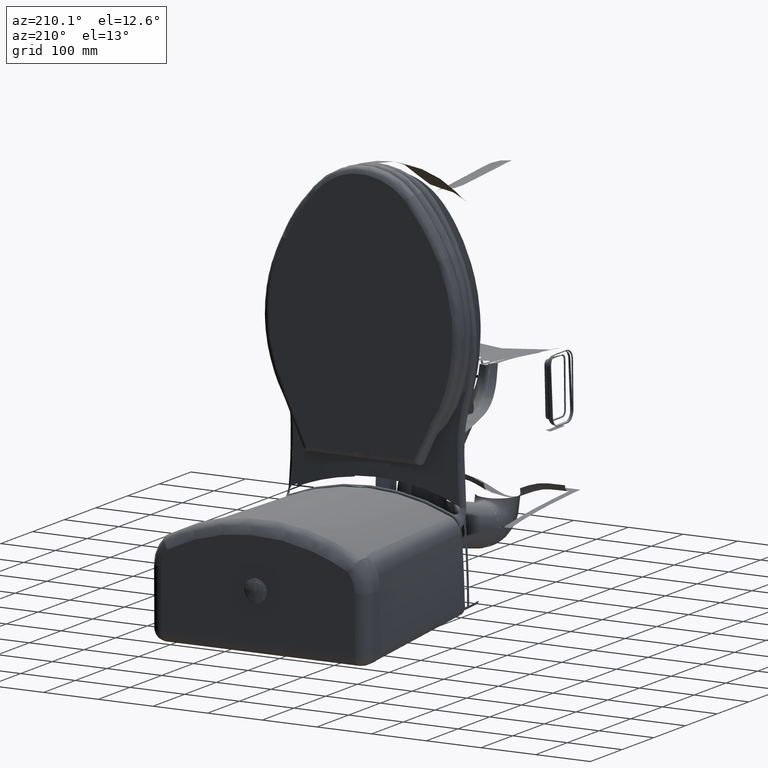
[diagram: clean part render]
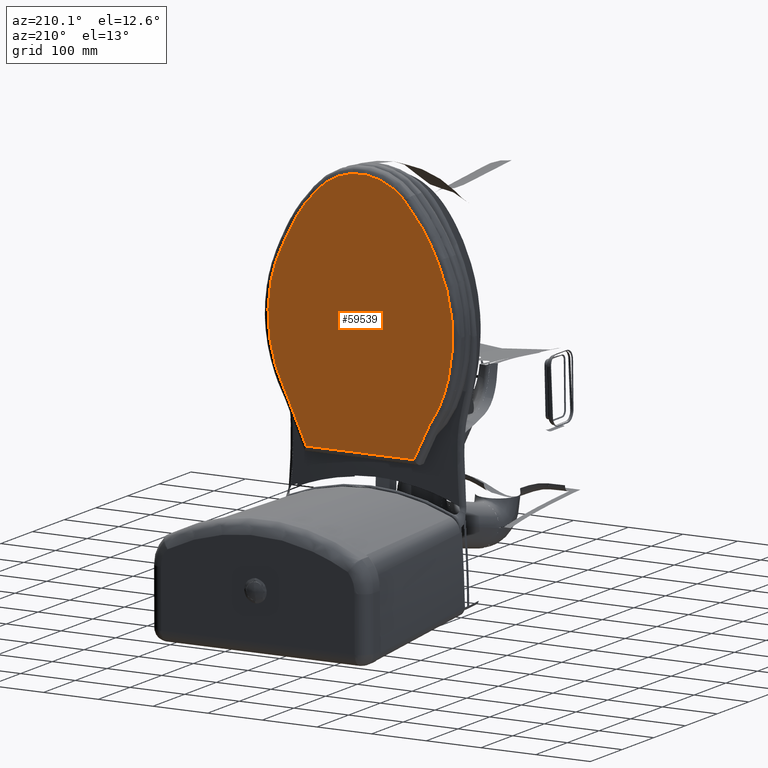
[diagram: same view with one face highlighted and labeled with its STEP entity id]
A machine part, auxiliary view. The second image highlights one B-rep face of the part: STEP entity #59539.
In plain terms, the highlighted planar face has unit normal (0, -1, 0).
Its self-contained STEP definition (entity closure, byte-faithful):
#559 = CARTESIAN_POINT ( 'NONE',  ( 3.286098007629335300, -16.45499421773421700, 1.730005033763283500 ) ) ;
#616 = LINE ( 'NONE', #37227, #61437 ) ;
#1597 = CARTESIAN_POINT ( 'NONE',  ( 2.123489069990299100, -17.41386682182216500, 1.730005332673225900 ) ) ;
#1702 = B_SPLINE_CURVE_WITH_KNOTS ( 'NONE', 3,
 ( #70713, #118073, #154722, #155779 ),
 .UNSPECIFIED., .F., .F.,
 ( 4, 4 ),
 ( 0.9941596985035944200, 1.000000000000000000 ),
 .UNSPECIFIED. ) ;
#2315 = VERTEX_POINT ( 'NONE', #64137 ) ;
#4241 = CARTESIAN_POINT ( 'NONE',  ( 6.688541884164446400, -8.270932939459656900, 1.730005161544387900 ) ) ;
#4541 = ORIENTED_EDGE ( 'NONE', *, *, #109467, .F. ) ;
#4770 = CARTESIAN_POINT ( 'NONE',  ( 6.165659422742198400, -11.57299144659068100, 1.730003817825037900 ) ) ;
#4805 = CARTESIAN_POINT ( 'NONE',  ( -5.527448575189504600, -12.98776847123936100, 1.730005309282358600 ) ) ;
#4974 = CARTESIAN_POINT ( 'NONE',  ( -4.862442681875535300, -14.28384617753204300, 1.730005328338644700 ) ) ;
#6943 = ORIENTED_EDGE ( 'NONE', *, *, #31520, .F. ) ;
#7458 = CARTESIAN_POINT ( 'NONE',  ( 3.303845784505707400, -16.43678746506099800, 1.730004749886754800 ) ) ;
#8171 = CARTESIAN_POINT ( 'NONE',  ( -5.603244161401574900, -3.572513742573228500, 1.730005332804133800 ) ) ;
#9101 = CARTESIAN_POINT ( 'NONE',  ( 0.03573113953952128400, -0.1233524165977156500, 1.730005332804134300 ) ) ;
#9700 = CARTESIAN_POINT ( 'NONE',  ( -3.157116642328374300, -16.59637594599977500, 1.730005331756872200 ) ) ;
#11576 = VECTOR ( 'NONE', #88645, 39.37007874015748100 ) ;
#11785 = ORIENTED_EDGE ( 'NONE', *, *, #89261, .F. ) ;
#14394 = CARTESIAN_POINT ( 'NONE',  ( 5.632989652245640000, -3.768639793634167600, 1.730005332804134300 ) ) ;
#14924 = CARTESIAN_POINT ( 'NONE',  ( 6.283840855661597200, -5.441501702141362500, 1.730005329273138300 ) ) ;
#16500 = CARTESIAN_POINT ( 'NONE',  ( 6.685880367019759500, -7.876396303458947500, 1.730005219812281300 ) ) ;
#17218 = CARTESIAN_POINT ( 'NONE',  ( -5.209938669327239100, -13.65091179327268600, 1.730005321767139600 ) ) ;
#17454 = B_SPLINE_CURVE_WITH_KNOTS ( 'NONE', 3,
 ( #150440, #4805, #102566, #66404 ),
 .UNSPECIFIED., .F., .F.,
 ( 4, 4 ),
 ( 0.9976367950439460900, 1.000000000000000000 ),
 .UNSPECIFIED. ) ;
#17510 = ORIENTED_EDGE ( 'NONE', *, *, #154818, .T. ) ;
#18265 = CARTESIAN_POINT ( 'NONE',  ( -5.526017270059973900, -12.99096230299535500, 1.730005321080808400 ) ) ;
#19181 = CARTESIAN_POINT ( 'NONE',  ( 4.516855792913816900, -14.93866083106955900, 1.730005295420173900 ) ) ;
#21170 = CARTESIAN_POINT ( 'NONE',  ( -5.216940746676483400, -2.871844582950137300, 1.730005332804133800 ) ) ;
#21286 = CARTESIAN_POINT ( 'NONE',  ( -4.060511274925197300, -0.1439480351072046900, 1.730005332804133800 ) ) ;
#21702 = CARTESIAN_POINT ( 'NONE',  ( -5.285628076734238500, -2.981310681230635100, 1.730005332804134500 ) ) ;
#21711 = CARTESIAN_POINT ( 'NONE',  ( -5.603244148242144000, -3.572513748674597700, 1.730005332804132300 ) ) ;
#23470 = CARTESIAN_POINT ( 'NONE',  ( 2.866014676906808700, -16.89139643439626700, 1.730005332787770500 ) ) ;
#23974 = CARTESIAN_POINT ( 'NONE',  ( -2.220456119833881900, -17.35758322856882400, 1.730005330627792500 ) ) ;
#24699 = EDGE_CURVE ( 'NONE', #103141, #29660, #91520, .T. ) ;
#24828 = VECTOR ( 'NONE', #44584, 39.37007874015748100 ) ;
#25422 = ORIENTED_EDGE ( 'NONE', *, *, #87276, .F. ) ;
#26579 = CARTESIAN_POINT ( 'NONE',  ( 6.688559005520120900, -8.274099975385228200, 1.730005161072137400 ) ) ;
#27107 = CARTESIAN_POINT ( 'NONE',  ( 6.659763705069269500, -9.121410210781451900, 1.730004992937609800 ) ) ;
#28866 = CARTESIAN_POINT ( 'NONE',  ( -5.331792039046460400, -13.40613621894938800, 1.730005317823128300 ) ) ;
#29398 = CARTESIAN_POINT ( 'NONE',  ( -4.093830881712135800, -15.48563436036195800, 1.730005333286256400 ) ) ;
#29660 = VERTEX_POINT ( 'NONE', #74742 ) ;
#29731 = CARTESIAN_POINT ( 'NONE',  ( 6.412594192784303500, -10.70347633023077600, 1.730004374838406900 ) ) ;
#29931 = CARTESIAN_POINT ( 'NONE',  ( -4.570629019468556800, -14.75856832057892200, 1.730005330898459100 ) ) ;
#30247 = CARTESIAN_POINT ( 'NONE',  ( 5.526502654284116500, -13.07425717635774900, 1.730002350892918300 ) ) ;
#30969 = CARTESIAN_POINT ( 'NONE',  ( -5.430405585175737600, -13.19973869760482900, 1.730005313931527500 ) ) ;
#31367 = CARTESIAN_POINT ( 'NONE',  ( 3.445794320534298500, -16.28808165130722700, 1.730004862738552900 ) ) ;
#31496 = B_SPLINE_CURVE_WITH_KNOTS ( 'NONE', 3,
 ( #81573, #118277, #96448, #96949 ),
 .UNSPECIFIED., .F., .F.,
 ( 4, 4 ),
 ( 0.9964967022407077400, 1.000000000000000000 ),
 .UNSPECIFIED. ) ;
#31520 = EDGE_CURVE ( 'NONE', #149748, #132146, #62794, .T. ) ;
#31872 = CARTESIAN_POINT ( 'NONE',  ( 4.505873100545811900, -14.95503776871087400, 1.730005293880359800 ) ) ;
#32017 = ORIENTED_EDGE ( 'NONE', *, *, #84983, .F. ) ;
#32402 = CARTESIAN_POINT ( 'NONE',  ( 3.855671584646516600, -15.82533144990871500, 1.730005109747135800 ) ) ;
#32907 = CARTESIAN_POINT ( 'NONE',  ( 3.530449817683260600, -16.19687863809499400, 1.730004923567847200 ) ) ;
#33348 = CARTESIAN_POINT ( 'NONE',  ( -5.258331100883232500, -2.937414186684451000, 1.730005332804134300 ) ) ;
#33434 = CARTESIAN_POINT ( 'NONE',  ( 4.301052217778982700, -15.24951609338567900, 1.730005257125520400 ) ) ;
#33899 = VERTEX_POINT ( 'NONE', #156806 ) ;
#35654 = CARTESIAN_POINT ( 'NONE',  ( 2.383740217578925100, -17.25655005427818600, 1.730005332722316400 ) ) ;
#36349 = CARTESIAN_POINT ( 'NONE',  ( 5.371124865941749400, -3.291347992313692100, 1.730005332804133800 ) ) ;
#37227 = CARTESIAN_POINT ( 'NONE',  ( 3.827416827143947900, 0.08726832549793996100, 1.730005332804133800 ) ) ;
#37394 = CARTESIAN_POINT ( 'NONE',  ( 5.336514018166159400, -3.227611490336526900, 1.730005332804133800 ) ) ;
#39309 = VECTOR ( 'NONE', #152544, 39.37007874015748100 ) ;
#39820 = CARTESIAN_POINT ( 'NONE',  ( 5.827176201604057600, -4.186545800117407600, 1.730005333024821300 ) ) ;
#40863 = CARTESIAN_POINT ( 'NONE',  ( 6.671928808082388900, -8.940659775917843900, 1.730005036752212800 ) ) ;
#41076 = CARTESIAN_POINT ( 'NONE',  ( -5.459486499611403000, -13.13741606452943800, 1.730005312652773000 ) ) ;
#43457 = CARTESIAN_POINT ( 'NONE',  ( 5.472788232485243000, -13.17574870825226800, 1.730002224333664100 ) ) ;
#43536 = CARTESIAN_POINT ( 'NONE',  ( 3.327449072346415600, -16.41245074497363600, 1.730004769708913400 ) ) ;
#44584 = DIRECTION ( 'NONE',  ( 1.000000000000000000, 0.0000000000000000000, 0.0000000000000000000 ) ) ;
#45082 = CARTESIAN_POINT ( 'NONE',  ( 4.873127470373974600, -14.37790536508862300, 1.730005327570379500 ) ) ;
#45609 = CARTESIAN_POINT ( 'NONE',  ( 3.302903752657514700, -16.43775604960466200, 1.730004749088007100 ) ) ;
#45652 = LINE ( 'NONE', #21286, #24828 ) ;
#46057 = CARTESIAN_POINT ( 'NONE',  ( -5.603244148242144000, -3.572513748674597700, 1.730005332804132300 ) ) ;
#46221 = CARTESIAN_POINT ( 'NONE',  ( 0.4681421504104733600, -0.1439480351071778800, 1.730005332804131400 ) ) ;
#46747 = CARTESIAN_POINT ( 'NONE',  ( 0.1006820198933883600, -0.1243394164305015900, 1.730005332804133800 ) ) ;
#47836 = CARTESIAN_POINT ( 'NONE',  ( 1.576021400873400600, -17.67117212311715600, 1.730005332542318100 ) ) ;
#48351 = CARTESIAN_POINT ( 'NONE',  ( -2.949202564749370000, -16.81604620549802600, 1.730005329924163600 ) ) ;
#49563 = ORIENTED_EDGE ( 'NONE', *, *, #132714, .F. ) ;
#50966 = CARTESIAN_POINT ( 'NONE',  ( 6.688737103314939400, -8.332607772623429600, 1.730005152188566000 ) ) ;
#51495 = CARTESIAN_POINT ( 'NONE',  ( 6.688565678419121400, -8.404475251971861700, 1.730005140820323900 ) ) ;
#52689 = CARTESIAN_POINT ( 'NONE',  ( -5.530193016143486200, -12.98163507606156000, 1.730005324915217000 ) ) ;
#53599 = CARTESIAN_POINT ( 'NONE',  ( 5.622628381860149500, -12.88529163162695600, 1.730002575956787200 ) ) ;
#53989 = VERTEX_POINT ( 'NONE', #148962 ) ;
#54045 = EDGE_CURVE ( 'NONE', #73742, #101941, #129526, .T. ) ;
#55668 = ORIENTED_EDGE ( 'NONE', *, *, #54045, .F. ) ;
#55777 = CARTESIAN_POINT ( 'NONE',  ( 4.059968604225765900, -15.57196862686569000, 1.730005191553814200 ) ) ;
#56474 = PLANE ( 'NONE',  #134976 ) ;
#57534 = B_SPLINE_CURVE_WITH_KNOTS ( 'NONE', 3,
 ( #85240, #36349, #37394, #109155 ),
 .UNSPECIFIED., .F., .F.,
 ( 4, 4 ),
 ( 0.0000000000000000000, 1.000000000000000000 ),
 .UNSPECIFIED. ) ;
#57909 = CARTESIAN_POINT ( 'NONE',  ( -0.007578815208014741700, -0.1229151351284713700, 1.730005332804134500 ) ) ;
#58540 = CARTESIAN_POINT ( 'NONE',  ( -5.530193016143486200, -12.98163507606156000, 1.730005324915217000 ) ) ;
#58968 = CARTESIAN_POINT ( 'NONE',  ( -0.2238384747868329100, -0.1228255164075880400, 1.730005332804133800 ) ) ;
#59539 = ADVANCED_FACE ( 'NONE', ( #120525 ), #56474, .F. ) ;
#61437 = VECTOR ( 'NONE', #153381, 39.37007874015748900 ) ;
#62794 = B_SPLINE_CURVE_WITH_KNOTS ( 'NONE', 3,
 ( #559, #147236, #23470, #35654, #1597, #47836, #132967, #145129, #72822, #72308, #157370, #84544, #109503, #96755, #23974, #121256, #48351, #133484 ),
 .UNSPECIFIED., .F., .F.,
 ( 4, 2, 2, 2, 2, 2, 2, 2, 4 ),
 ( 0.0000000000000000000, 0.1250000000000001100, 0.2500000000000001100, 0.3750000000000001100, 0.5000000000000001100, 0.6250000000000001100, 0.7500000000000001100, 0.8750000000000001100, 1.000000000000000000 ),
 .UNSPECIFIED. ) ;
#64137 = CARTESIAN_POINT ( 'NONE',  ( 3.932180641797189400, -0.1439480351072202100, 1.730005332804133800 ) ) ;
#64268 = CARTESIAN_POINT ( 'NONE',  ( 6.563554861842995100, -6.679559518207842200, 1.730005303011359400 ) ) ;
#64957 = EDGE_CURVE ( 'NONE', #33899, #103141, #31496, .T. ) ;
#65235 = CARTESIAN_POINT ( 'NONE',  ( -6.119124032473781200, -4.892268098768977500, 1.730005332804133800 ) ) ;
#65840 = CARTESIAN_POINT ( 'NONE',  ( 6.236320980674856100, -11.35146777317316900, 1.730003976514188400 ) ) ;
#66188 = EDGE_CURVE ( 'NONE', #2315, #132814, #616, .T. ) ;
#66360 = CARTESIAN_POINT ( 'NONE',  ( 5.472640748926828300, -13.17602416148652700, 1.730002223985505300 ) ) ;
#66404 = CARTESIAN_POINT ( 'NONE',  ( -5.530193016143486200, -12.98163507606156000, 1.730005324915217000 ) ) ;
#66570 = CARTESIAN_POINT ( 'NONE',  ( -5.507151311015687300, -13.03291652622699500, 1.730005310333426100 ) ) ;
#67993 = CARTESIAN_POINT ( 'NONE',  ( 3.305664281040308500, -16.43491699852081200, 1.730004751426649900 ) ) ;
#69563 = CARTESIAN_POINT ( 'NONE',  ( 3.314750026183726800, -16.42556091724785400, 1.730004759090425100 ) ) ;
#70332 = CARTESIAN_POINT ( 'NONE',  ( -3.813996840892552900, -0.1439480351086482600, 1.730005332804133800 ) ) ;
#70713 = CARTESIAN_POINT ( 'NONE',  ( 3.302026654592304500, -16.43865758659490300, 1.730005040573765300 ) ) ;
#70815 = CARTESIAN_POINT ( 'NONE',  ( -4.963561711291295500, -2.511931007385861800, 1.730005332804134300 ) ) ;
#71057 = CARTESIAN_POINT ( 'NONE',  ( -5.026460284357857400, -2.594588085558874100, 1.730005332804133600 ) ) ;
#72308 = CARTESIAN_POINT ( 'NONE',  ( -0.2065362764157806200, -17.96101810507269300, 1.730005331887779900 ) ) ;
#72599 = ORIENTED_EDGE ( 'NONE', *, *, #141605, .T. ) ;
#72822 = CARTESIAN_POINT ( 'NONE',  ( 0.3982387471878792200, -17.94774667815853800, 1.730005332149595000 ) ) ;
#73742 = VERTEX_POINT ( 'NONE', #58540 ) ;
#74742 = CARTESIAN_POINT ( 'NONE',  ( 3.302026654592304500, -16.43865758659490300, 1.730005040573765300 ) ) ;
#75435 = CARTESIAN_POINT ( 'NONE',  ( 6.687854352459932100, -8.466974416846811700, 1.730005130261363700 ) ) ;
#76237 = CARTESIAN_POINT ( 'NONE',  ( -0.5687183846433085900, -0.1439480351071642500, 1.730005332804132300 ) ) ;
#76491 = CARTESIAN_POINT ( 'NONE',  ( 6.683094572439878300, -8.678870007979769600, 1.730005091535069300 ) ) ;
#77022 = CARTESIAN_POINT ( 'NONE',  ( 6.661831607544425700, -7.482859653188039100, 1.730005255342922800 ) ) ;
#77207 = VERTEX_POINT ( 'NONE', #70815 ) ;
#77547 = CARTESIAN_POINT ( 'NONE',  ( 6.359787577125413100, -10.91671074013051700, 1.730004255020873200 ) ) ;
#77736 = CARTESIAN_POINT ( 'NONE',  ( -4.510377695535493300, -14.85153228919274900, 1.730005331234613500 ) ) ;
#78794 = CARTESIAN_POINT ( 'NONE',  ( -5.125802567127094800, -13.81166057346044300, 1.730005323825659400 ) ) ;
#79122 = CARTESIAN_POINT ( 'NONE',  ( 5.761038158689944800, -12.59571964068566400, 1.730002897077938600 ) ) ;
#79320 = CARTESIAN_POINT ( 'NONE',  ( -4.498268579814032700, -14.87006114596686500, 1.730005331297211900 ) ) ;
#79630 = CARTESIAN_POINT ( 'NONE',  ( 5.707407317475130500, -12.71132215890635000, 1.730002773196933900 ) ) ;
#79708 = CARTESIAN_POINT ( 'NONE',  ( 3.585994337150606000, -16.13561010047962400, 1.730004959979281700 ) ) ;
#80732 = CARTESIAN_POINT ( 'NONE',  ( 5.456198319436005300, -13.20660827638314100, 1.730003758984674200 ) ) ;
#81573 = CARTESIAN_POINT ( 'NONE',  ( 5.472544556578580600, -13.17620403517389600, 1.730003778281166400 ) ) ;
#83732 = CARTESIAN_POINT ( 'NONE',  ( 3.286098007629335300, -16.45499421773421700, 1.730005033763283500 ) ) ;
#83753 = EDGE_CURVE ( 'NONE', #132146, #53989, #131440, .T. ) ;
#84544 = CARTESIAN_POINT ( 'NONE',  ( -1.104011277146686800, -17.82366147902970600, 1.730005331413239500 ) ) ;
#84983 = EDGE_CURVE ( 'NONE', #29660, #149748, #1702, .T. ) ;
#85240 = CARTESIAN_POINT ( 'NONE',  ( 5.405061622962597000, -3.356681703147243100, 1.730005332749389400 ) ) ;
#85632 = ORIENTED_EDGE ( 'NONE', *, *, #64957, .F. ) ;
#85982 = CARTESIAN_POINT ( 'NONE',  ( 5.405061622962597000, -3.356681703147243100, 1.730005332749389400 ) ) ;
#87276 = EDGE_CURVE ( 'NONE', #115498, #2315, #45652, .T. ) ;
#87675 = CARTESIAN_POINT ( 'NONE',  ( 6.152593206828232300, -5.022977491927354900, 1.730005331259323100 ) ) ;
#88645 = DIRECTION ( 'NONE',  ( 0.4367200501730225700, 0.8995974643010464800, 0.0000000000000000000 ) ) ;
#88732 = CARTESIAN_POINT ( 'NONE',  ( 6.606111686655914600, -9.681365232366246700, 1.730004832390542400 ) ) ;
#89261 = EDGE_CURVE ( 'NONE', #53989, #73742, #17454, .T. ) ;
#89276 = CARTESIAN_POINT ( 'NONE',  ( 6.688662919571708400, -8.296937046811359900, 1.730005157644498100 ) ) ;
#89809 = CARTESIAN_POINT ( 'NONE',  ( 5.913640939668041200, -12.25050971750435200, 1.730003247688680000 ) ) ;
#90333 = CARTESIAN_POINT ( 'NONE',  ( 5.593646692989695500, -12.94337554193927000, 1.730002508306557800 ) ) ;
#91054 = CARTESIAN_POINT ( 'NONE',  ( -5.371684702294888100, -13.32393578050460500, 1.730005316365367500 ) ) ;
#91380 = CARTESIAN_POINT ( 'NONE',  ( 5.479360955298262500, -13.16345537528628500, 1.730002239845950300 ) ) ;
#91520 = B_SPLINE_CURVE_WITH_KNOTS ( 'NONE', 3,
 ( #80732, #106255, #93514, #45082, #129187, #19181, #31872, #116936, #104161, #130222, #33434, #153602, #55777, #32402, #129696, #79708, #32907, #31367, #140853, #116404, #43536, #69563, #154629, #67993, #7458, #45609, #92490 ),
 .UNSPECIFIED., .F., .F.,
 ( 4, 2, 2, 2, 1, 1, 2, 2, 2, 2, 1, 1, 1, 1, 1, 2, 4 ),
 ( 0.0000000000000000000, 0.2485399246259063200, 0.4970798492518126400, 0.5126135945409316900, 0.5281473398300508000, 0.5592148304082875700, 0.6213498115647611000, 0.7456197738777065000, 0.8698897361906520200, 0.9320247173471245500, 0.9630922079253614300, 0.9786259532144795400, 0.9863928258590378700, 0.9902762621813162600, 0.9922179803424554500, 0.9931888394230250500, 0.9941596985035944200 ),
 .UNSPECIFIED. ) ;
#92098 = CARTESIAN_POINT ( 'NONE',  ( -4.654056061044064700, -14.62742540935358400, 1.730005330350911100 ) ) ;
#92490 = CARTESIAN_POINT ( 'NONE',  ( 3.302026654592304500, -16.43865758659490300, 1.730005040573765300 ) ) ;
#93514 = CARTESIAN_POINT ( 'NONE',  ( 5.183342088908229800, -13.80551482229532400, 1.730005333551813100 ) ) ;
#93839 = ORIENTED_EDGE ( 'NONE', *, *, #66188, .F. ) ;
#93965 = CARTESIAN_POINT ( 'NONE',  ( -4.963561711291295500, -2.511931007385861800, 1.730005332804134300 ) ) ;
#94058 = ORIENTED_EDGE ( 'NONE', *, *, #118915, .F. ) ;
#94470 = CARTESIAN_POINT ( 'NONE',  ( -5.117249020515703100, -2.720774807498154100, 1.730005332804133800 ) ) ;
#94996 = CARTESIAN_POINT ( 'NONE',  ( -5.516450604666252900, -3.385267301034219100, 1.730005332804133600 ) ) ;
#95657 = CARTESIAN_POINT ( 'NONE',  ( -0.5687183846433085900, -0.1439480351071642500, 1.730005332804132300 ) ) ;
#96448 = CARTESIAN_POINT ( 'NONE',  ( 5.461548844705610000, -13.19669612174942400, 1.730002197799410200 ) ) ;
#96755 = CARTESIAN_POINT ( 'NONE',  ( -1.953552451226188800, -17.50333294328242000, 1.730005330840517900 ) ) ;
#96949 = CARTESIAN_POINT ( 'NONE',  ( 5.456198319436005300, -13.20660827638314100, 1.730003758984674200 ) ) ;
#99366 = CARTESIAN_POINT ( 'NONE',  ( 6.688487789300189100, -8.261969445076665900, 1.730005162874987100 ) ) ;
#100944 = CARTESIAN_POINT ( 'NONE',  ( 6.688506692601027500, -8.264957720045883200, 1.730005162432319600 ) ) ;
#101682 = CARTESIAN_POINT ( 'NONE',  ( -4.492235221421195100, -14.87926864947353100, 1.730005331327631600 ) ) ;
#101941 = VERTEX_POINT ( 'NONE', #21711 ) ;
#102566 = CARTESIAN_POINT ( 'NONE',  ( -5.528840427234714900, -12.98465936688999100, 1.730005309208982400 ) ) ;
#102920 = LINE ( 'NONE', #65235, #11576 ) ;
#103141 = VERTEX_POINT ( 'NONE', #144095 ) ;
#103182 = CARTESIAN_POINT ( 'NONE',  ( -7.004286647947834500, -6.613898514745521600, 1.730005332804133800 ) ) ;
#103766 = CARTESIAN_POINT ( 'NONE',  ( -3.157116642328374300, -16.59637594599977500, 1.730005331756872200 ) ) ;
#104161 = CARTESIAN_POINT ( 'NONE',  ( 4.450213555853882700, -15.03724098161285700, 1.730005285541695900 ) ) ;
#106255 = CARTESIAN_POINT ( 'NONE',  ( 5.326392321019749700, -13.51015293754271000, 1.730005332804134300 ) ) ;
#106455 = EDGE_CURVE ( 'NONE', #115498, #129198, #154424, .T. ) ;
#109155 = CARTESIAN_POINT ( 'NONE',  ( 5.301229079635824300, -3.165472197215746700, 1.730005332804133800 ) ) ;
#109467 = EDGE_CURVE ( 'NONE', #125191, #129198, #149634, .T. ) ;
#109503 = CARTESIAN_POINT ( 'NONE',  ( -1.395321221788851500, -17.73637574531319000, 1.730005331233241500 ) ) ;
#111614 = CARTESIAN_POINT ( 'NONE',  ( 6.688597366742333100, -8.281706053655074800, 1.730005159934857800 ) ) ;
#112119 = CARTESIAN_POINT ( 'NONE',  ( 5.405061622962597000, -3.356681703147243100, 1.730005332749389400 ) ) ;
#114259 = CARTESIAN_POINT ( 'NONE',  ( 5.472544556578580600, -13.17620403517389600, 1.730003778281166400 ) ) ;
#114461 = CARTESIAN_POINT ( 'NONE',  ( -5.488142430035240200, -13.07476051092560400, 1.730005311274831300 ) ) ;
#114779 = CARTESIAN_POINT ( 'NONE',  ( 6.547497051426625500, -10.07841518109306000, 1.730004686973077400 ) ) ;
#115313 = CARTESIAN_POINT ( 'NONE',  ( 5.473032001019419100, -13.17529337631047800, 1.730002224909108700 ) ) ;
#115319 = VERTEX_POINT ( 'NONE', #85982 ) ;
#115498 = VERTEX_POINT ( 'NONE', #124299 ) ;
#116404 = CARTESIAN_POINT ( 'NONE',  ( 3.352774117177554900, -16.38619001109706700, 1.730004790563813800 ) ) ;
#116936 = CARTESIAN_POINT ( 'NONE',  ( 4.483675694544111900, -14.98793988451744100, 1.730005290634941200 ) ) ;
#117949 = CARTESIAN_POINT ( 'NONE',  ( -4.060511274925197300, -0.1439480351072046900, 1.730005332804133800 ) ) ;
#118073 = CARTESIAN_POINT ( 'NONE',  ( 3.296750251473842900, -16.44408074700038500, 1.730004743864117500 ) ) ;
#118277 = CARTESIAN_POINT ( 'NONE',  ( 5.466998288990322600, -13.18656172545527200, 1.730002210665397800 ) ) ;
#118915 = EDGE_CURVE ( 'NONE', #115319, #33899, #132483, .T. ) ;
#118917 = CARTESIAN_POINT ( 'NONE',  ( -5.419529271584062600, -3.202923491463737000, 1.730005332804133800 ) ) ;
#120525 = FACE_OUTER_BOUND ( 'NONE', #137094, .T. ) ;
#120835 = B_SPLINE_CURVE_WITH_KNOTS ( 'NONE', 3,
 ( #93965, #71057, #94470, #21170, #33348, #21702, #154020, #118917, #94996, #46057 ),
 .UNSPECIFIED., .F., .F.,
 ( 4, 1, 1, 2, 2, 4 ),
 ( 0.0000000000000000000, 0.2499999999999974500, 0.3749999999999969500, 0.4374999999999973900, 0.4999999999999978900, 1.000000000000000000 ),
 .UNSPECIFIED. ) ;
#121256 = CARTESIAN_POINT ( 'NONE',  ( -2.718289031748456700, -17.01393443766518100, 1.730005330169616800 ) ) ;
#121394 = ORIENTED_EDGE ( 'NONE', *, *, #83753, .F. ) ;
#124299 = CARTESIAN_POINT ( 'NONE',  ( 0.4681421504104733600, -0.1439480351071778800, 1.730005332804131400 ) ) ;
#124953 = CARTESIAN_POINT ( 'NONE',  ( 6.489314125200385400, -6.269791813404289400, 1.730005315149156100 ) ) ;
#125191 = VERTEX_POINT ( 'NONE', #70332 ) ;
#126507 = CARTESIAN_POINT ( 'NONE',  ( 5.486156938634968200, -13.15070816125171000, 1.730002255877549200 ) ) ;
#127034 = CARTESIAN_POINT ( 'NONE',  ( 5.549068304574230800, -13.03061161024500900, 1.730002403859450800 ) ) ;
#127230 = CARTESIAN_POINT ( 'NONE',  ( -4.724162070332779400, -14.51354527109222700, 1.730005329751820100 ) ) ;
#127681 = CARTESIAN_POINT ( 'NONE',  ( -6.978289563363467200, -9.962370633947404700, 1.730005332804133800 ) ) ;
#128600 = CARTESIAN_POINT ( 'NONE',  ( 5.475955261560273800, -13.16982952926920400, 1.730002231809073800 ) ) ;
#129187 = CARTESIAN_POINT ( 'NONE',  ( 4.705964367303012700, -14.65493415691403100, 1.730005320841267100 ) ) ;
#129198 = VERTEX_POINT ( 'NONE', #76237 ) ;
#129526 =( BOUNDED_CURVE ( )  B_SPLINE_CURVE ( 3, ( #52689, #127681, #103182, #151045 ),
 .UNSPECIFIED., .F., .F. ) 
 B_SPLINE_CURVE_WITH_KNOTS ( ( 4, 4 ),
 ( 0.0000000000000000000, 1.000000000000000000 ),
 .UNSPECIFIED. ) 
 CURVE ( )  GEOMETRIC_REPRESENTATION_ITEM ( )  RATIONAL_B_SPLINE_CURVE ( ( 1.000000000000000000, 0.9366581730941280200, 0.9366581730941280200, 1.000000000000000000 ) ) 
 REPRESENTATION_ITEM ( '' )  );
#129696 = CARTESIAN_POINT ( 'NONE',  ( 3.749946391652273700, -15.95049236510020500, 1.730005058437359200 ) ) ;
#130222 = CARTESIAN_POINT ( 'NONE',  ( 4.370971857793255000, -15.15190363290747700, 1.730005271980525700 ) ) ;
#130398 = DIRECTION ( 'NONE',  ( 0.0000000000000000000, 0.0000000000000000000, -1.000000000000000000 ) ) ;
#130820 = CARTESIAN_POINT ( 'NONE',  ( 0.3817845405742228400, -0.1368933564288892200, 1.730005332804133800 ) ) ;
#131340 = CARTESIAN_POINT ( 'NONE',  ( 0.2521357116803525900, -0.1289599594427696900, 1.730005332804133800 ) ) ;
#131440 = B_SPLINE_CURVE_WITH_KNOTS ( 'NONE', 3,
 ( #103766, #152171, #29398, #101682, #79320, #77736, #151643, #29931, #92098, #127230, #4974, #139430, #78794, #17218, #28866, #91054, #30969, #41076, #114461, #66570, #140479, #18265 ),
 .UNSPECIFIED., .F., .F.,
 ( 4, 2, 2, 1, 1, 1, 2, 2, 2, 2, 1, 2, 4 ),
 ( 0.0000000000000000000, 0.4988183975219593300, 0.5066124349832406000, 0.5144064724445218700, 0.5299945473670831800, 0.5611706972122071400, 0.6235229969024553800, 0.7482275962829526600, 0.8729321956634500400, 0.9352844953536987300, 0.9664606451988224700, 0.9820487201213842200, 0.9976367950439460900 ),
 .UNSPECIFIED. ) ;
#131864 = CARTESIAN_POINT ( 'NONE',  ( -0.02928586509000844600, -0.1228068581482160700, 1.730005332804134300 ) ) ;
#132146 = VERTEX_POINT ( 'NONE', #9700 ) ;
#132483 = B_SPLINE_CURVE_WITH_KNOTS ( 'NONE', 3,
 ( #112119, #14394, #39820, #87675, #14924, #124953, #64268, #77022, #16500, #99366, #100944, #4241, #26579, #111614, #89276, #50966, #51495, #75435, #149375, #76491, #40863, #27107, #88732, #114779, #29731, #77547, #65840, #4770, #139758, #89809, #79122, #79630, #53599, #90333, #127034, #30247, #138713, #126507, #91380, #128600, #151449, #150912, #115313, #43457, #66360, #114259 ),
 .UNSPECIFIED., .F., .F.,
 ( 4, 2, 2, 2, 2, 2, 2, 1, 1, 1, 2, 2, 2, 2, 2, 2, 2, 2, 2, 1, 1, 1, 1, 1, 1, 1, 2, 4 ),
 ( 0.0000000000000000000, 0.1245620877801053400, 0.2491241755602106900, 0.3736862633403160200, 0.4982483511204213700, 0.4992214924312032800, 0.5001946337419852500, 0.5021409163635487400, 0.5060334816066761600, 0.5138186120929307800, 0.5293888730654395800, 0.5605293950104572900, 0.6228104389004928100, 0.7473725266805638600, 0.8096535705705997200, 0.8719346144606355800, 0.9342156583506714400, 0.9653561802956893700, 0.9809264412681983900, 0.9887115717544527900, 0.9926041369975801000, 0.9945504196191439200, 0.9955235609299256700, 0.9960101315853167000, 0.9962534169130122800, 0.9963750595768600100, 0.9964358809087838800, 0.9964967022407077400 ),
 .UNSPECIFIED. ) ;
#132714 = EDGE_CURVE ( 'NONE', #77207, #125191, #102920, .T. ) ;
#132814 = VERTEX_POINT ( 'NONE', #148978 ) ;
#132967 = CARTESIAN_POINT ( 'NONE',  ( 1.288822155445528100, -17.77115253666560700, 1.730005332460500900 ) ) ;
#133484 = CARTESIAN_POINT ( 'NONE',  ( -3.157116642328374300, -16.59637594599977500, 1.730005331756872200 ) ) ;
#134976 = AXIS2_PLACEMENT_3D ( 'NONE', #8171, #130398, #154295 ) ;
#137094 = EDGE_LOOP ( 'NONE', ( #121394, #6943, #32017, #151456, #85632, #94058, #17510, #93839, #25422, #155449, #4541, #49563, #72599, #55668, #11785 ) ) ;
#138713 = CARTESIAN_POINT ( 'NONE',  ( 5.499687364086719700, -13.12521822040619100, 1.730002287772532300 ) ) ;
#139430 = CARTESIAN_POINT ( 'NONE',  ( -4.952054556482289100, -14.12812775713196200, 1.730005327111412600 ) ) ;
#139758 = CARTESIAN_POINT ( 'NONE',  ( 6.004320336298548900, -12.02251196485729200, 1.730003453412283900 ) ) ;
#140479 = CARTESIAN_POINT ( 'NONE',  ( -5.516576132781138700, -13.01202931447216600, 1.730005309853017700 ) ) ;
#140853 = CARTESIAN_POINT ( 'NONE',  ( 3.403131913101998100, -16.33350820087982300, 1.730004830769947400 ) ) ;
#141605 = EDGE_CURVE ( 'NONE', #77207, #101941, #120835, .T. ) ;
#144095 = CARTESIAN_POINT ( 'NONE',  ( 5.456198319436005300, -13.20660827638314100, 1.730003758984674200 ) ) ;
#145129 = CARTESIAN_POINT ( 'NONE',  ( 0.6999215367556910200, -17.90944199642647300, 1.730005332264139800 ) ) ;
#147236 = CARTESIAN_POINT ( 'NONE',  ( 3.088022769927330400, -16.68357110555140500, 1.730005332804134500 ) ) ;
#148962 = CARTESIAN_POINT ( 'NONE',  ( -5.526017270059973900, -12.99096230299535500, 1.730005321080808400 ) ) ;
#148978 = CARTESIAN_POINT ( 'NONE',  ( 5.301229079635824300, -3.165472197215746700, 1.730005332804133800 ) ) ;
#149375 = CARTESIAN_POINT ( 'NONE',  ( 6.685635393871344900, -8.593160964665711900, 1.730005107966311000 ) ) ;
#149634 = LINE ( 'NONE', #117949, #39309 ) ;
#149748 = VERTEX_POINT ( 'NONE', #83732 ) ;
#150440 = CARTESIAN_POINT ( 'NONE',  ( -5.526017270059973900, -12.99096230299535500, 1.730005321080808400 ) ) ;
#150912 = CARTESIAN_POINT ( 'NONE',  ( 5.473397619397092100, -13.17461038078114100, 1.730002225772182100 ) ) ;
#151045 = CARTESIAN_POINT ( 'NONE',  ( -5.603244148242144000, -3.572513748674597700, 1.730005332804132300 ) ) ;
#151449 = CARTESIAN_POINT ( 'NONE',  ( 5.474250487998232600, -13.17301674125672400, 1.730002227785359100 ) ) ;
#151456 = ORIENTED_EDGE ( 'NONE', *, *, #24699, .F. ) ;
#151643 = CARTESIAN_POINT ( 'NONE',  ( -4.528512973197418700, -14.82370803838179200, 1.730005331138521300 ) ) ;
#152171 = CARTESIAN_POINT ( 'NONE',  ( -3.649917184959512900, -16.05808063585551800, 1.730005332804134300 ) ) ;
#152544 = DIRECTION ( 'NONE',  ( 1.000000000000000000, 0.0000000000000000000, 0.0000000000000000000 ) ) ;
#153381 = DIRECTION ( 'NONE',  ( 0.4127104440630056100, -0.9108622779330125500, 0.0000000000000000000 ) ) ;
#153602 = CARTESIAN_POINT ( 'NONE',  ( 4.158540487365895500, -15.44376675797834300, 1.730005222050716300 ) ) ;
#154020 = CARTESIAN_POINT ( 'NONE',  ( -5.299099023476373700, -3.003302166661540300, 1.730005332804133800 ) ) ;
#154295 = DIRECTION ( 'NONE',  ( -1.000000000000000000, 0.0000000000000000000, -0.0000000000000000000 ) ) ;
#154424 = B_SPLINE_CURVE_WITH_KNOTS ( 'NONE', 3,
 ( #46221, #130820, #131340, #46747, #9101, #57909, #131864, #58968, #156261, #95657 ),
 .UNSPECIFIED., .F., .F.,
 ( 4, 1, 1, 2, 2, 4 ),
 ( 0.0000000000000000000, 0.2500000000000000000, 0.3750000000000000000, 0.4375000000000000000, 0.5000000000000000000, 1.000000000000000000 ),
 .UNSPECIFIED. ) ;
#154629 = CARTESIAN_POINT ( 'NONE',  ( 3.308391373844050700, -16.43211093571541800, 1.730004753733033400 ) ) ;
#154722 = CARTESIAN_POINT ( 'NONE',  ( 3.291440764766832700, -16.44952635954112500, 1.730004739324200600 ) ) ;
#154818 = EDGE_CURVE ( 'NONE', #115319, #132814, #57534, .T. ) ;
#155449 = ORIENTED_EDGE ( 'NONE', *, *, #106455, .T. ) ;
#155779 = CARTESIAN_POINT ( 'NONE',  ( 3.286098007629335300, -16.45499421773421700, 1.730005033763283500 ) ) ;
#156261 = CARTESIAN_POINT ( 'NONE',  ( -0.3964436624269387400, -0.1298718843472742300, 1.730005332804134300 ) ) ;
#156806 = CARTESIAN_POINT ( 'NONE',  ( 5.472544556578580600, -13.17620403517389600, 1.730003778281166400 ) ) ;
#157370 = CARTESIAN_POINT ( 'NONE',  ( -0.5096094257041854400, -17.93598443092863100, 1.730005331740508200 ) ) ;